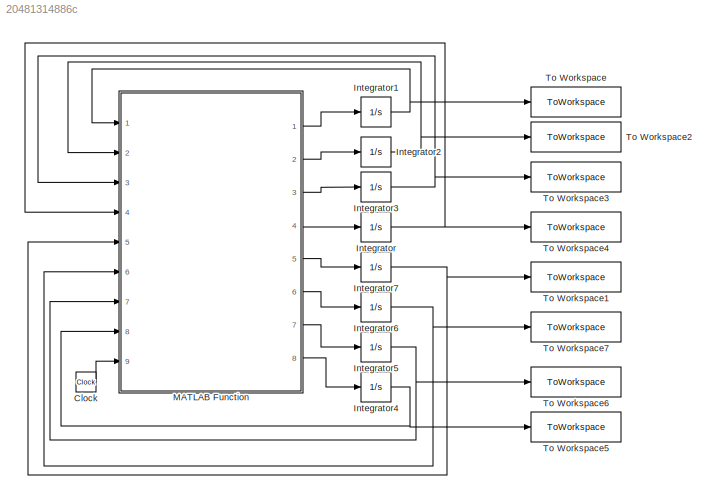
MODEL slx_20481314886c
KIND model
CONFIG AbsTol = auto
CONFIG EnableMultiTasking = off
CONFIG FixedStep = auto
CONFIG MaxStep = auto
CONFIG MinStep = auto
CONFIG RelTol = 1e-3
CONFIG SampleTimeConstraint = Unconstrained
CONFIG Solver = VariableStepAuto
CONFIG SolverName = VariableStepAuto
CONFIG StartTime = 0.0
CONFIG StopTime = 20
BLOCK [Clock] Clock
BLOCK [Integrator] Integrator
  InitialCondition = x4_0
  Ports = [1, 1]
BLOCK [Integrator] Integrator1
  InitialCondition = x1_0
  Ports = [1, 1]
BLOCK [Integrator] Integrator2
  InitialCondition = x2_0
  Ports = [1, 1]
BLOCK [Integrator] Integrator3
  InitialCondition = x3_0
  Ports = [1, 1]
BLOCK [Integrator] Integrator4
  InitialCondition = y4_0
  Ports = [1, 1]
BLOCK [Integrator] Integrator5
  InitialCondition = y3_0
  Ports = [1, 1]
BLOCK [Integrator] Integrator6
  InitialCondition = y2_0
  Ports = [1, 1]
BLOCK [Integrator] Integrator7
  InitialCondition = y1_0
  Ports = [1, 1]
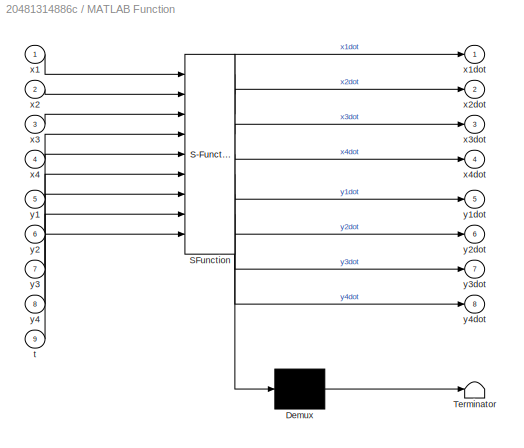
BLOCK [SubSystem] MATLAB Function
  ErrorFcn = Stateflow.Translate.translate
  PermitHierarchicalResolution = ExplicitOnly
  Ports = [9, 8]
  RequestExecContextInheritance = off
  SFBlockType = MATLAB Function
  TreatAsAtomicUnit = on
BLOCK [Demux] MATLAB Function/ Demux 
  Outputs = 1
  Ports = [1, 1]
BLOCK [S-Function] MATLAB Function/ SFunction 
  EnableBusSupport = on
  FunctionName = sf_sfun
  PortCounts = [9 9]
  Ports = [9, 9]
  SFcnIsStateOwnerBlock = off
  SFunctionDeploymentMode = off
  Tag = Stateflow S-Function 2
BLOCK [Terminator] MATLAB Function/ Terminator 
BLOCK [Inport] MATLAB Function/t
  IconDisplay = Port number
  Port = 9
BLOCK [Inport] MATLAB Function/x1
  IconDisplay = Port number
BLOCK [Outport] MATLAB Function/x1dot
  IconDisplay = Port number
BLOCK [Inport] MATLAB Function/x2
  IconDisplay = Port number
  Port = 2
BLOCK [Outport] MATLAB Function/x2dot
  IconDisplay = Port number
  Port = 2
BLOCK [Inport] MATLAB Function/x3
  IconDisplay = Port number
  Port = 3
BLOCK [Outport] MATLAB Function/x3dot
  IconDisplay = Port number
  Port = 3
BLOCK [Inport] MATLAB Function/x4
  IconDisplay = Port number
  Port = 4
BLOCK [Outport] MATLAB Function/x4dot
  IconDisplay = Port number
  Port = 4
BLOCK [Inport] MATLAB Function/y1
  IconDisplay = Port number
  Port = 5
BLOCK [Outport] MATLAB Function/y1dot
  IconDisplay = Port number
  Port = 5
BLOCK [Inport] MATLAB Function/y2
  IconDisplay = Port number
  Port = 6
BLOCK [Outport] MATLAB Function/y2dot
  IconDisplay = Port number
  Port = 6
BLOCK [Inport] MATLAB Function/y3
  IconDisplay = Port number
  Port = 7
BLOCK [Outport] MATLAB Function/y3dot
  IconDisplay = Port number
  Port = 7
BLOCK [Inport] MATLAB Function/y4
  IconDisplay = Port number
  Port = 8
BLOCK [Outport] MATLAB Function/y4dot
  IconDisplay = Port number
  Port = 8
BLOCK [ToWorkspace] To Workspace
  FixptAsFi = on
  MaxDataPoints = inf
  Ports = [1]
  SampleTime = -1
  VariableName = x1
BLOCK [ToWorkspace] To Workspace1
  FixptAsFi = on
  MaxDataPoints = inf
  Ports = [1]
  SampleTime = -1
  VariableName = y1
BLOCK [ToWorkspace] To Workspace2
  FixptAsFi = on
  MaxDataPoints = inf
  Ports = [1]
  SampleTime = -1
  VariableName = x2
BLOCK [ToWorkspace] To Workspace3
  FixptAsFi = on
  MaxDataPoints = inf
  Ports = [1]
  SampleTime = -1
  VariableName = x3
BLOCK [ToWorkspace] To Workspace4
  FixptAsFi = on
  MaxDataPoints = inf
  Ports = [1]
  SampleTime = -1
  VariableName = x4
BLOCK [ToWorkspace] To Workspace5
  FixptAsFi = on
  MaxDataPoints = inf
  Ports = [1]
  SampleTime = -1
  VariableName = y4
BLOCK [ToWorkspace] To Workspace6
  FixptAsFi = on
  MaxDataPoints = inf
  Ports = [1]
  SampleTime = -1
  VariableName = y3
BLOCK [ToWorkspace] To Workspace7
  FixptAsFi = on
  MaxDataPoints = inf
  Ports = [1]
  SampleTime = -1
  VariableName = y2
LINE Clock:1 -> MATLAB Function:9
NET Integrator1:1 -> MATLAB Function:1, To Workspace:1
NET Integrator2:1 -> MATLAB Function:2, To Workspace2:1
NET Integrator3:1 -> MATLAB Function:3, To Workspace3:1
NET Integrator4:1 -> MATLAB Function:8, To Workspace5:1
NET Integrator5:1 -> MATLAB Function:7, To Workspace6:1
NET Integrator6:1 -> MATLAB Function:6, To Workspace7:1
NET Integrator7:1 -> MATLAB Function:5, To Workspace1:1
NET Integrator:1 -> MATLAB Function:4, To Workspace4:1
LINE MATLAB Function:1 -> Integrator1:1
LINE MATLAB Function:2 -> Integrator2:1
LINE MATLAB Function:3 -> Integrator3:1
LINE MATLAB Function:4 -> Integrator:1
LINE MATLAB Function:5 -> Integrator7:1
LINE MATLAB Function:6 -> Integrator6:1
LINE MATLAB Function:7 -> Integrator5:1
LINE MATLAB Function:8 -> Integrator4:1
note: NET lines group one-source signal fan-out (src -> all destinations, sorted); 1:1 wires keep LINE
CHART MATLAB Function states=1 transitions=1
  STATE_LABEL 'eML_blk_kernel()'
  STATE_LABEL 'SCRIPT:\nfunction [x1dot,x2dot,x3dot,x4dot,y1dot,y2dot,y3dot,y4dot] = fcn(x1,x2,x3,x4,y1,y2,y3,y4,t)\n\nx1dot=x4-x1;\nx2dot=x1-x2+1;\nx3dot=x2-x3;\nx4dot=x3-x4-1;\ny1dot=y4-y1+1;\ny2dot=y1-y2;\ny3dot=y2-y3-1;\ny4dot=y3-y4;\n'
